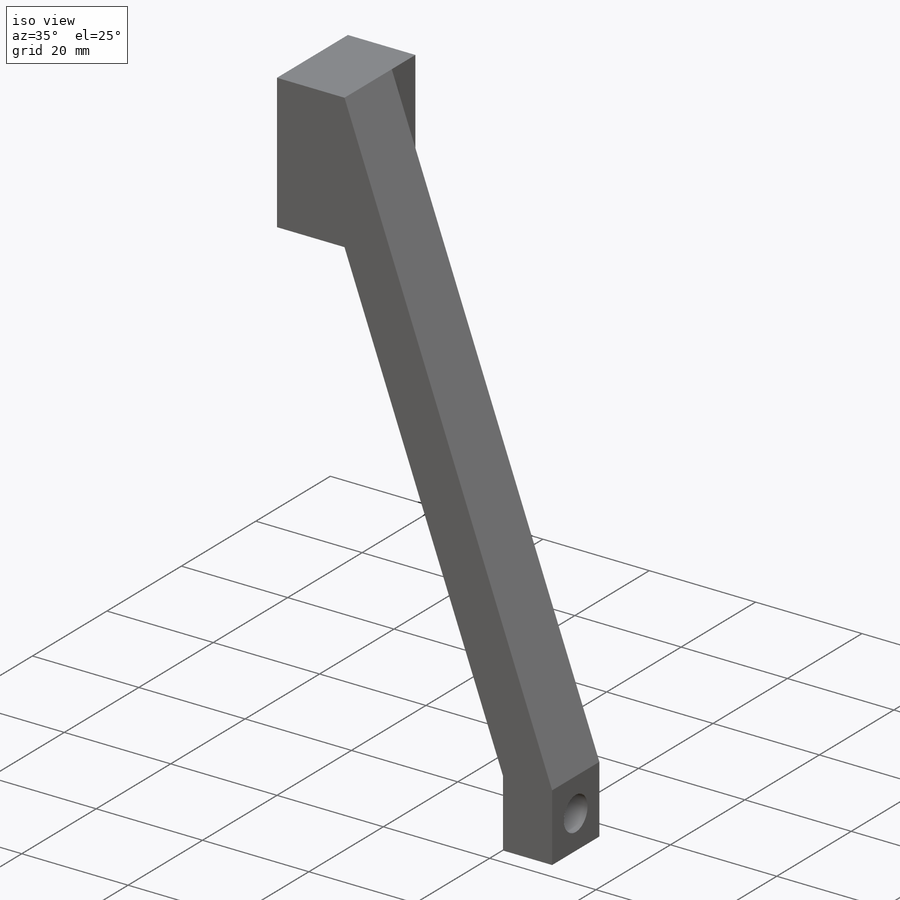
[diagram: iso view]
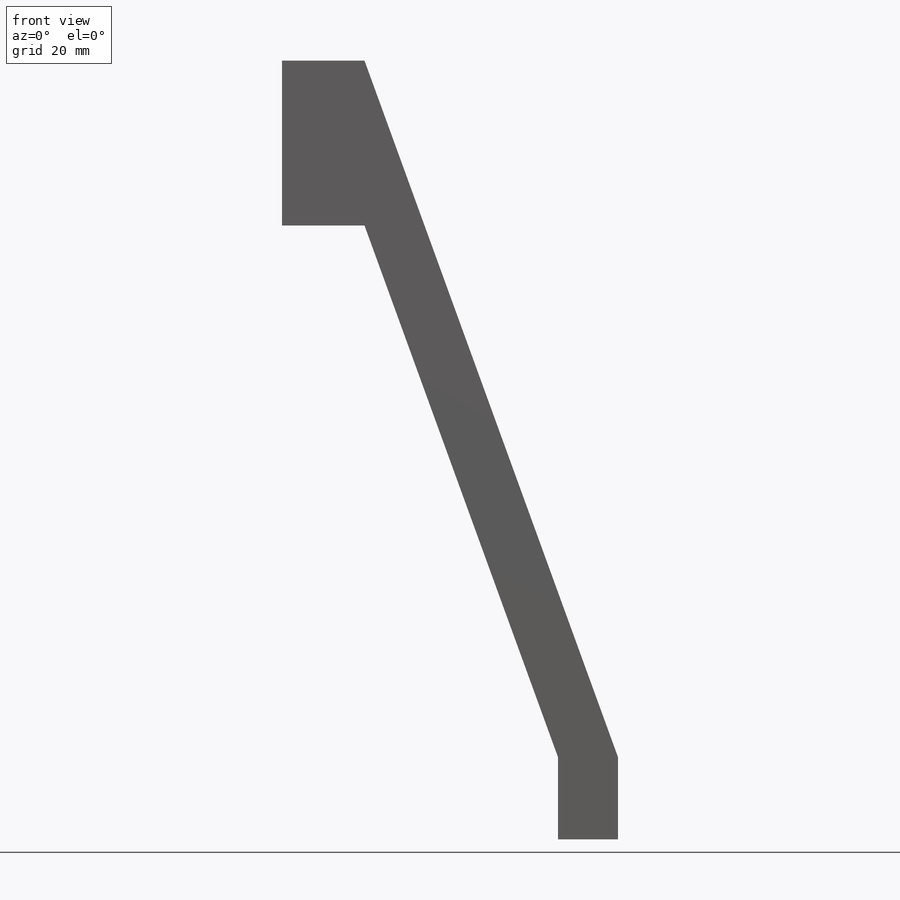
[diagram: front view]
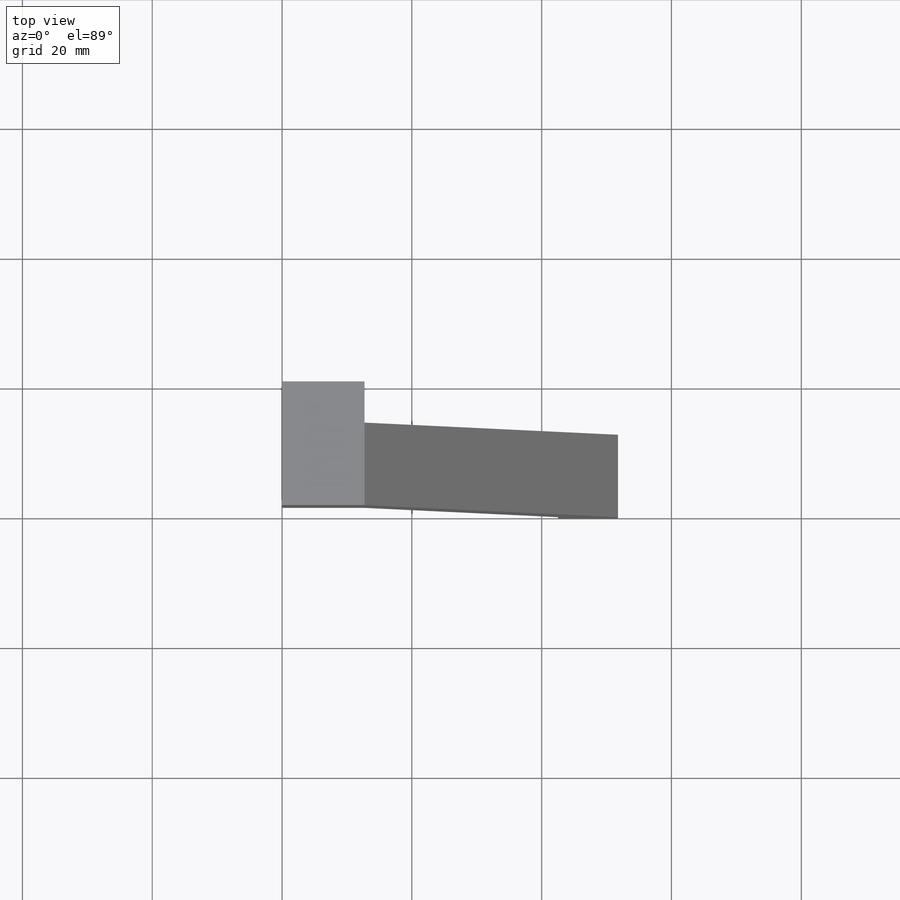
[diagram: top view]
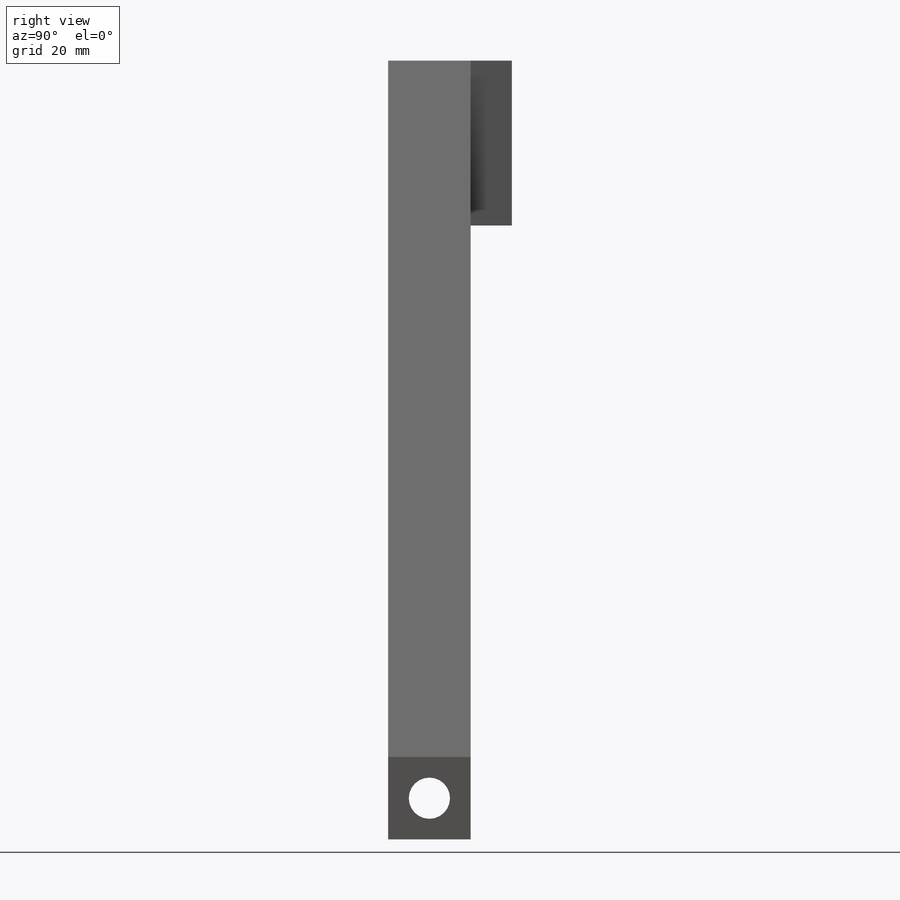
[diagram: right view]
SOLIDWORKS PART (.sldprt)
format: sldprt  version: not decoded by parser v0  size: 166,400 bytes
history: native  units: mm
features: sketch x4, extrude x2, cut_extrude x2, material x1 (+16 scaffold rows collapsed)
feature tree (25):
  scaffold x16  (default folders/planes/origin — collapsed)
  material  "Material <not specified>"
  sketch  "Sketch1"  dims[c1.D1=25.4mm c1.D2=120.0mm c1.D3=12.7mm c1.D4=~192.226918mm c2.D4=70.0deg c2.D5=12.7mm c2.D6=12.7mm c3.D4=~32.356954mm c4.D4=70.0deg]
  extrude  "Boss-Extrude1"  Depth=12.7mm
  sketch  "Sketch2"  dims[D1=3.175mm D2=1.5875mm D3=3.175mm]
  cut_extrude  "Cut-Extrude1"  [1 undecoded]
  sketch  "Sketch5"
  extrude  "Boss-Extrude2"  Depth=6.35mm
  sketch  "Sketch4"  dims[D1=6.35mm D2=6.35mm D3=6.35mm]
  cut_extrude  "Cut-Extrude2"  Depth=19.05mm
decode coverage: 6 of 8 modeling features carry decoded parameters
note: ~ marks probable driven/reference dimensions
note: 1 parameter value undecoded
note: suppression state not decoded; provenance and decode notes live in map.json
